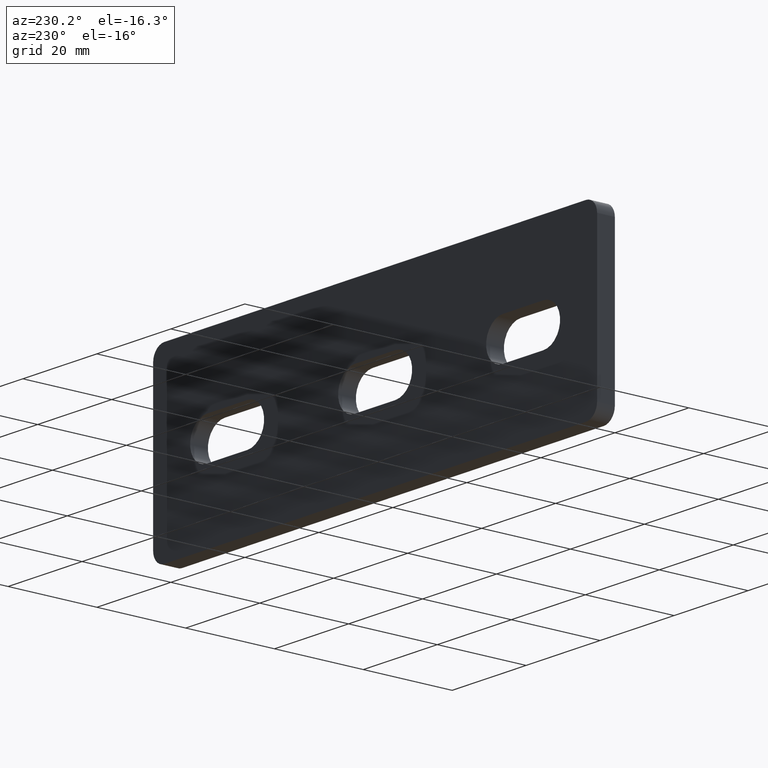
[diagram: clean part render]
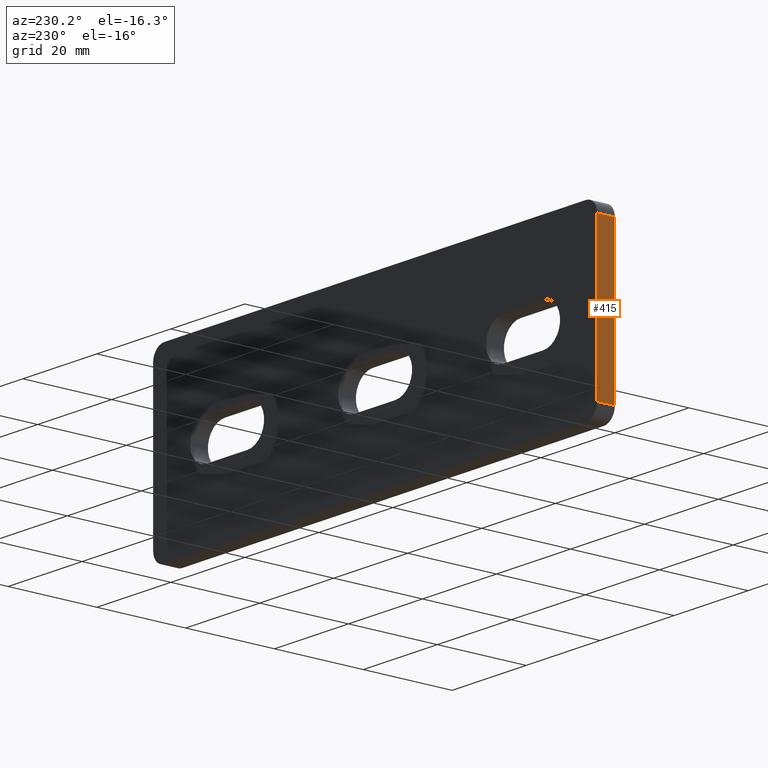
[diagram: same view with one face highlighted and labeled with its STEP entity id]
A machine part, auxiliary view. The second image highlights one B-rep face of the part: STEP entity #415.
In plain terms, the highlighted planar face has unit normal (1, 0, 0).
Its self-contained STEP definition (entity closure, byte-faithful):
#33=FACE_OUTER_BOUND('',#61,.T.);
#61=EDGE_LOOP('',(#321,#322,#323,#324));
#102=LINE('',#634,#142);
#111=LINE('',#671,#151);
#121=LINE('',#710,#161);
#122=LINE('',#711,#162);
#142=VECTOR('',#507,1000.);
#151=VECTOR('',#536,1000.);
#161=VECTOR('',#568,1000.);
#162=VECTOR('',#569,1000.);
#183=VERTEX_POINT('',#631);
#184=VERTEX_POINT('',#633);
#201=VERTEX_POINT('',#669);
#202=VERTEX_POINT('',#670);
#223=EDGE_CURVE('',#183,#184,#102,.T.);
#241=EDGE_CURVE('',#201,#202,#111,.T.);
#261=EDGE_CURVE('',#183,#201,#121,.T.);
#262=EDGE_CURVE('',#202,#184,#122,.T.);
#321=ORIENTED_EDGE('',*,*,#223,.F.);
#322=ORIENTED_EDGE('',*,*,#261,.T.);
#323=ORIENTED_EDGE('',*,*,#241,.T.);
#324=ORIENTED_EDGE('',*,*,#262,.T.);
#403=PLANE('',#480);
#415=ADVANCED_FACE('',(#33),#403,.F.);
#480=AXIS2_PLACEMENT_3D('',#709,#566,#567);
#507=DIRECTION('',(0.,0.,1.));
#536=DIRECTION('',(0.,0.,1.));
#566=DIRECTION('center_axis',(1.,4.93038065763132E-31,0.));
#567=DIRECTION('ref_axis',(0.,0.,-1.));
#568=DIRECTION('',(-5.66993775627602E-31,-1.,0.));
#569=DIRECTION('',(5.66993775627602E-31,1.,0.));
#631=CARTESIAN_POINT('',(-59.9999999999987,3.99999999999934,-17.0000000000001));
#633=CARTESIAN_POINT('',(-59.9999999999987,4.,16.9999999999999));
#634=CARTESIAN_POINT('',(-59.9999999999987,4.,20.));
#669=CARTESIAN_POINT('',(-59.9999999999987,0.,-16.9999999999999));
#670=CARTESIAN_POINT('',(-59.9999999999987,-4.44089209850063E-13,16.9999999999992));
#671=CARTESIAN_POINT('',(-59.9999999999987,0.,19.9999999999998));
#709=CARTESIAN_POINT('Origin',(-59.9999999999987,4.,20.));
#710=CARTESIAN_POINT('',(-59.9999999999987,3.99999999999934,-17.0000000000001));
#711=CARTESIAN_POINT('',(-59.9999999999987,4.,16.9999999999999));